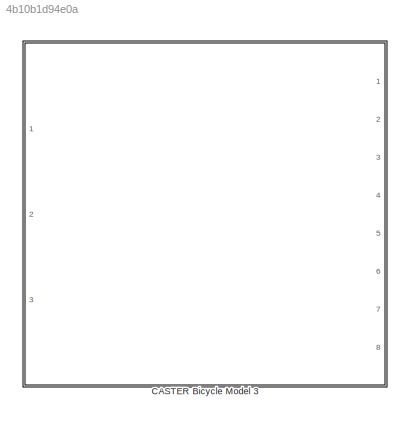
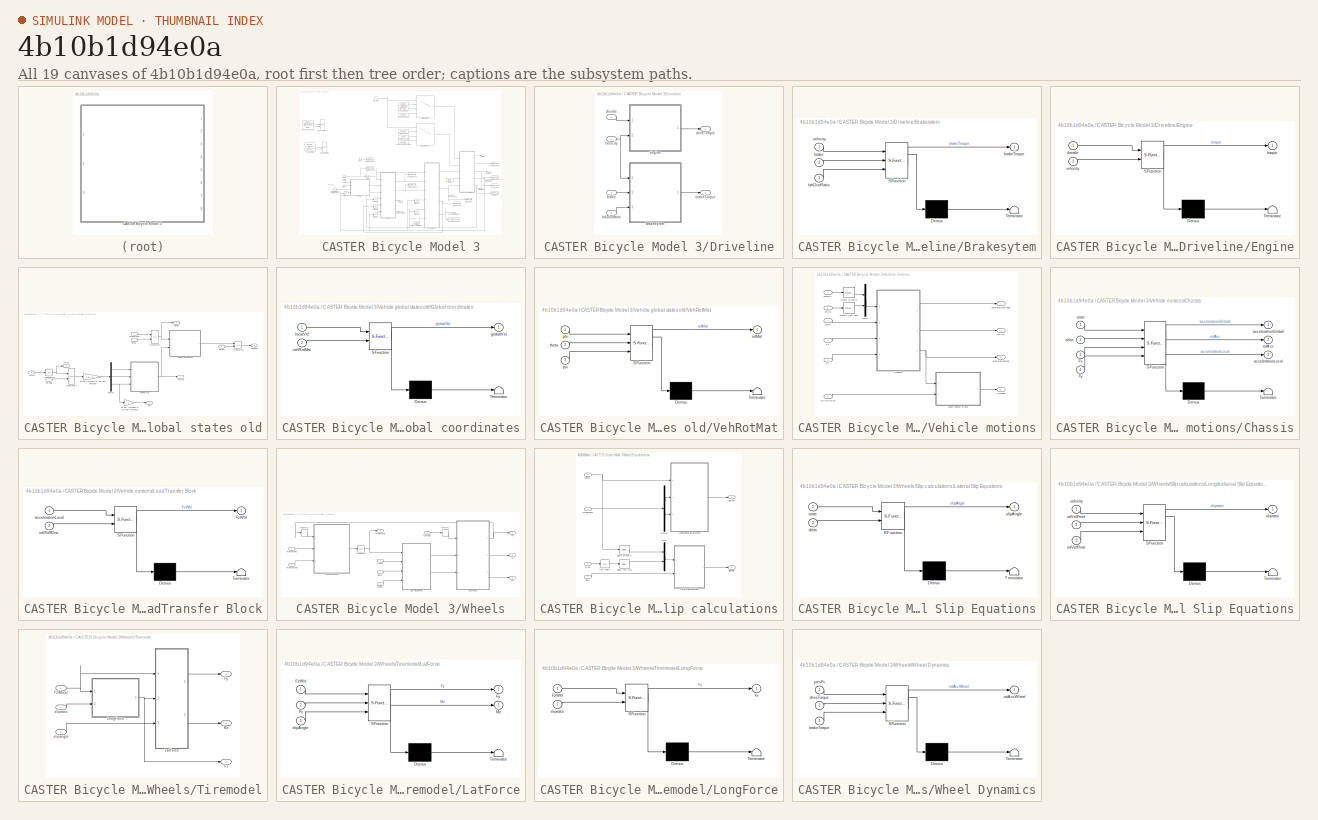
[diagram: thumbnail index - all 19 canvases of the model, root first then tree order]
MODEL slx_4b10b1d94e0a
KIND model
CONFIG AbsTol = auto
CONFIG EnableMultiTasking = on
CONFIG FixedStep = auto
CONFIG MaxStep = auto
CONFIG MinStep = auto
CONFIG RelTol = 1e-3
CONFIG SampleTimeConstraint = Unconstrained
CONFIG SolverName = VariableStepAuto
CONFIG StartTime = 0.0
CONFIG StopTime = 10.0
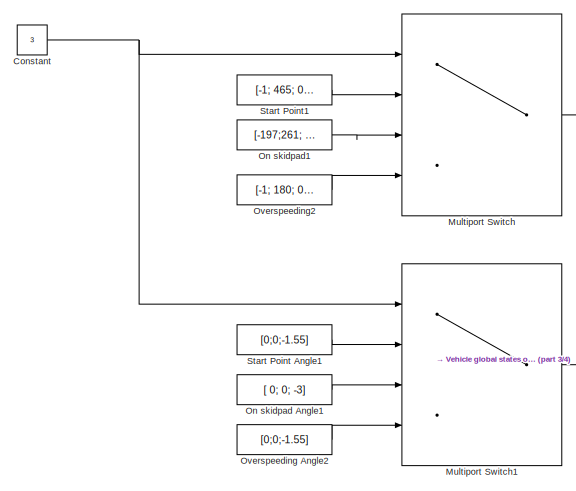
[diagram: CASTER Bicycle Model 3 - part 1/4, top center region]
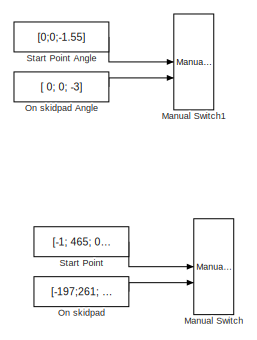
[diagram: CASTER Bicycle Model 3 - part 2/4, top left region]
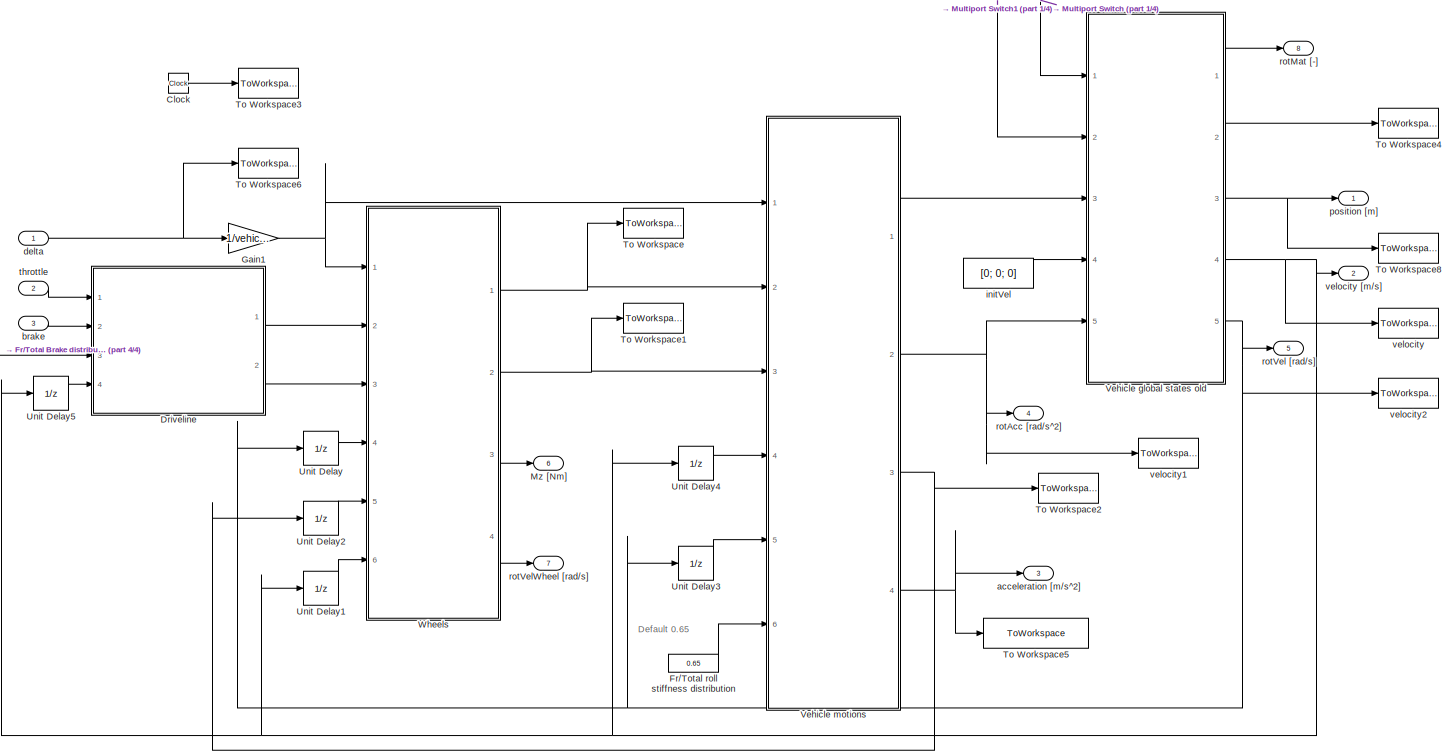
[diagram: CASTER Bicycle Model 3 - part 3/4, full width, bottom band]
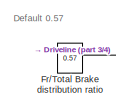
[diagram: CASTER Bicycle Model 3 - part 4/4, bottom left region]
BLOCK [SubSystem] CASTER Bicycle Model 3
  Ports = [3, 8]
  RequestExecContextInheritance = off
BLOCK [Clock] CASTER Bicycle Model 3/Clock
BLOCK [Constant] CASTER Bicycle Model 3/Constant
  Value = 3
BLOCK [SubSystem] CASTER Bicycle Model 3/Driveline
  Ports = [4, 2]
  RequestExecContextInheritance = off
BLOCK [SubSystem] CASTER Bicycle Model 3/Driveline/Brakesytem
  ErrorFcn = Stateflow.Translate.translate
  PermitHierarchicalResolution = ExplicitOnly
  Ports = [3, 1]
  RequestExecContextInheritance = off
  SFBlockType = MATLAB Function
  TreatAsAtomicUnit = on
BLOCK [Demux] CASTER Bicycle Model 3/Driveline/Brakesytem/ Demux 
  Outputs = 1
  Ports = [1, 1]
BLOCK [S-Function] CASTER Bicycle Model 3/Driveline/Brakesytem/ SFunction 
  EnableBusSupport = off
  FunctionName = sf_sfun
  PortCounts = [3 2]
  Ports = [3, 2]
  SFcnIsStateOwnerBlock = off
  SFunctionDeploymentMode = off
  Tag = Stateflow S-Function 1
BLOCK [Terminator] CASTER Bicycle Model 3/Driveline/Brakesytem/ Terminator 
BLOCK [Inport] CASTER Bicycle Model 3/Driveline/Brakesytem/brake
  Port = 2
BLOCK [Outport] CASTER Bicycle Model 3/Driveline/Brakesytem/brakeTorque
BLOCK [Inport] CASTER Bicycle Model 3/Driveline/Brakesytem/brkDistRatio
  Port = 3
BLOCK [Inport] CASTER Bicycle Model 3/Driveline/Brakesytem/velocity
BLOCK [SubSystem] CASTER Bicycle Model 3/Driveline/Engine
  ErrorFcn = Stateflow.Translate.translate
  PermitHierarchicalResolution = ExplicitOnly
  Ports = [2, 1]
  RequestExecContextInheritance = off
  SFBlockType = MATLAB Function
  TreatAsAtomicUnit = on
BLOCK [Demux] CASTER Bicycle Model 3/Driveline/Engine/ Demux 
  Outputs = 1
  Ports = [1, 1]
BLOCK [S-Function] CASTER Bicycle Model 3/Driveline/Engine/ SFunction 
  EnableBusSupport = off
  FunctionName = sf_sfun
  Parameters = vehicleData
  PortCounts = [2 2]
  Ports = [2, 2]
  SFcnIsStateOwnerBlock = off
  SFunctionDeploymentMode = off
  Tag = Stateflow S-Function 2
BLOCK [Terminator] CASTER Bicycle Model 3/Driveline/Engine/ Terminator 
BLOCK [Inport] CASTER Bicycle Model 3/Driveline/Engine/throttle
BLOCK [Outport] CASTER Bicycle Model 3/Driveline/Engine/torque
BLOCK [Inport] CASTER Bicycle Model 3/Driveline/Engine/velocity
  Port = 2
BLOCK [Inport] CASTER Bicycle Model 3/Driveline/brake
  Port = 2
BLOCK [Outport] CASTER Bicycle Model 3/Driveline/brakeTorque
  Port = 2
BLOCK [Inport] CASTER Bicycle Model 3/Driveline/brkDistRatio
  Port = 3
BLOCK [Outport] CASTER Bicycle Model 3/Driveline/driveTorque
BLOCK [Inport] CASTER Bicycle Model 3/Driveline/throttle
BLOCK [Inport] CASTER Bicycle Model 3/Driveline/velocity
  Port = 4
BLOCK [Constant] CASTER Bicycle Model 3/Fr//Total Brake distribution ratio
  Value = 0.57
  VectorParams1D = off
BLOCK [Constant] CASTER Bicycle Model 3/Fr//Total roll stiffness distribution
  Value = 0.65
BLOCK [Gain] CASTER Bicycle Model 3/Gain1
  Gain = 1/vehicleData.steeringRatio
BLOCK [ManualSwitch] CASTER Bicycle Model 3/Manual Switch
  Commented = on
BLOCK [ManualSwitch] CASTER Bicycle Model 3/Manual Switch1
  Commented = on
BLOCK [MultiPortSwitch] CASTER Bicycle Model 3/Multiport Switch
  InputSameDT = off
  Ports = [4, 1]
  SaturateOnIntegerOverflow = off
BLOCK [MultiPortSwitch] CASTER Bicycle Model 3/Multiport Switch1
  InputSameDT = off
  Ports = [4, 1]
  SaturateOnIntegerOverflow = off
BLOCK [Outport] CASTER Bicycle Model 3/Mz [Nm]
  Port = 6
BLOCK [Constant] CASTER Bicycle Model 3/On skidpad
  Commented = on
  Value = [-197;261; 0.7]
BLOCK [Constant] CASTER Bicycle Model 3/On skidpad Angle
  Commented = on
  Value = [ 0; 0; -3]
BLOCK [Constant] CASTER Bicycle Model 3/On skidpad Angle1
  Value = [ 0; 0; -3]
BLOCK [Constant] CASTER Bicycle Model 3/On skidpad1
  Value = [-197;261; 0.7]
BLOCK [Constant] CASTER Bicycle Model 3/Overspeeding Angle2
  Value = [0;0;-1.55]
BLOCK [Constant] CASTER Bicycle Model 3/Overspeeding2
  Value = [-1; 180; 0.7]
BLOCK [Constant] CASTER Bicycle Model 3/Start Point
  Commented = on
  Value = [-1; 465; 0.7]
BLOCK [Constant] CASTER Bicycle Model 3/Start Point Angle
  Commented = on
  Value = [0;0;-1.55]
BLOCK [Constant] CASTER Bicycle Model 3/Start Point Angle1
  Value = [0;0;-1.55]
BLOCK [Constant] CASTER Bicycle Model 3/Start Point1
  Value = [-1; 465; 0.7]
BLOCK [ToWorkspace] CASTER Bicycle Model 3/To Workspace
  FixptAsFi = on
  MaxDataPoints = inf
  Ports = [1]
  SampleTime = -1
  VariableName = Fx
BLOCK [ToWorkspace] CASTER Bicycle Model 3/To Workspace1
  FixptAsFi = on
  MaxDataPoints = inf
  Ports = [1]
  SampleTime = -1
  VariableName = Fy
BLOCK [ToWorkspace] CASTER Bicycle Model 3/To Workspace2
  FixptAsFi = on
  MaxDataPoints = inf
  Ports = [1]
  SampleTime = -1
  VariableName = FzWheel
BLOCK [ToWorkspace] CASTER Bicycle Model 3/To Workspace3
  FixptAsFi = on
  MaxDataPoints = inf
  Ports = [1]
  SampleTime = -1
  VariableName = t
BLOCK [ToWorkspace] CASTER Bicycle Model 3/To Workspace4
  FixptAsFi = on
  MaxDataPoints = inf
  Ports = [1]
  SampleTime = -1
  VariableName = psi
BLOCK [ToWorkspace] CASTER Bicycle Model 3/To Workspace5
  FixptAsFi = on
  MaxDataPoints = inf
  Ports = [1]
  SampleTime = -1
  VariableName = accelerationLocal
BLOCK [ToWorkspace] CASTER Bicycle Model 3/To Workspace6
  FixptAsFi = on
  MaxDataPoints = inf
  Ports = [1]
  SampleTime = -1
  VariableName = delta
BLOCK [ToWorkspace] CASTER Bicycle Model 3/To Workspace8
  FixptAsFi = on
  MaxDataPoints = inf
  Ports = [1]
  SampleTime = -1
  VariableName = position
BLOCK [UnitDelay] CASTER Bicycle Model 3/Unit Delay
  HasFrameUpgradeWarning = on
  SampleTime = -1
BLOCK [UnitDelay] CASTER Bicycle Model 3/Unit Delay1
  HasFrameUpgradeWarning = on
  SampleTime = -1
BLOCK [UnitDelay] CASTER Bicycle Model 3/Unit Delay2
  HasFrameUpgradeWarning = on
  SampleTime = -1
BLOCK [UnitDelay] CASTER Bicycle Model 3/Unit Delay3
  HasFrameUpgradeWarning = on
  SampleTime = -1
BLOCK [UnitDelay] CASTER Bicycle Model 3/Unit Delay4
  HasFrameUpgradeWarning = on
  SampleTime = -1
BLOCK [UnitDelay] CASTER Bicycle Model 3/Unit Delay5
  HasFrameUpgradeWarning = on
  SampleTime = -1
BLOCK [SubSystem] CASTER Bicycle Model 3/Vehicle global states old
  Ports = [5, 5]
  RequestExecContextInheritance = off
BLOCK [Demux] CASTER Bicycle Model 3/Vehicle global states old/Demux
  Outputs = 3
  Ports = [1, 3]
BLOCK [SubSystem] CASTER Bicycle Model 3/Vehicle global states old/Global coordinates
  ErrorFcn = Stateflow.Translate.translate
  PermitHierarchicalResolution = ExplicitOnly
  Ports = [2, 1]
  RequestExecContextInheritance = off
  SFBlockType = MATLAB Function
  TreatAsAtomicUnit = on
BLOCK [Demux] CASTER Bicycle Model 3/Vehicle global states old/Global coordinates/ Demux 
  Outputs = 1
  Ports = [1, 1]
BLOCK [S-Function] CASTER Bicycle Model 3/Vehicle global states old/Global coordinates/ SFunction 
  EnableBusSupport = off
  FunctionName = sf_sfun
  PortCounts = [2 2]
  Ports = [2, 2]
  SFcnIsStateOwnerBlock = off
  SFunctionDeploymentMode = off
  Tag = Stateflow S-Function 3
BLOCK [Terminator] CASTER Bicycle Model 3/Vehicle global states old/Global coordinates/ Terminator 
BLOCK [Outport] CASTER Bicycle Model 3/Vehicle global states old/Global coordinates/globalVel
BLOCK [Inport] CASTER Bicycle Model 3/Vehicle global states old/Global coordinates/localVel
BLOCK [Inport] CASTER Bicycle Model 3/Vehicle global states old/Global coordinates/vehRotMat
  Port = 2
BLOCK [Integrator] CASTER Bicycle Model 3/Vehicle global states old/Integrator1
  InitialCondition = [0 0 0]
  InitialConditionSource = external
  LimitOutput = on
  Ports = [2, 1]
  UpperSaturationLimit = 90/3.6
BLOCK [Integrator] CASTER Bicycle Model 3/Vehicle global states old/Integrator2
  InitialCondition = [0; 0; 2]
  InitialConditionSource = external
  Ports = [2, 1]
BLOCK [Integrator] CASTER Bicycle Model 3/Vehicle global states old/Integrator3
  InitialCondition = [0 0 0]
  LowerSaturationLimit = -200
  Ports = [1, 1]
  UpperSaturationLimit = 200
BLOCK [Integrator] CASTER Bicycle Model 3/Vehicle global states old/Integrator4
  InitialCondition = [0 0 0]
  InitialConditionSource = external
  LowerSaturationLimit = -200
  Ports = [2, 1]
  UpperSaturationLimit = 200
BLOCK [Gain] CASTER Bicycle Model 3/Vehicle global states old/To get rotations in the right direction
  Gain = [-1; -1; -1]
BLOCK [Gain] CASTER Bicycle Model 3/Vehicle global states old/To get rotations in the right direction1
  Gain = -1
BLOCK [SubSystem] CASTER Bicycle Model 3/Vehicle global states old/VehRotMat
  ErrorFcn = Stateflow.Translate.translate
  PermitHierarchicalResolution = ExplicitOnly
  Ports = [3, 1]
  RequestExecContextInheritance = off
  SFBlockType = MATLAB Function
  TreatAsAtomicUnit = on
BLOCK [Demux] CASTER Bicycle Model 3/Vehicle global states old/VehRotMat/ Demux 
  Outputs = 1
  Ports = [1, 1]
BLOCK [S-Function] CASTER Bicycle Model 3/Vehicle global states old/VehRotMat/ SFunction 
  EnableBusSupport = off
  FunctionName = sf_sfun
  PortCounts = [3 2]
  Ports = [3, 2]
  SFcnIsStateOwnerBlock = off
  SFunctionDeploymentMode = off
  Tag = Stateflow S-Function 4
BLOCK [Terminator] CASTER Bicycle Model 3/Vehicle global states old/VehRotMat/ Terminator 
BLOCK [Inport] CASTER Bicycle Model 3/Vehicle global states old/VehRotMat/phi
BLOCK [Inport] CASTER Bicycle Model 3/Vehicle global states old/VehRotMat/psi
  Port = 3
BLOCK [Outport] CASTER Bicycle Model 3/Vehicle global states old/VehRotMat/rotMat
BLOCK [Inport] CASTER Bicycle Model 3/Vehicle global states old/VehRotMat/theta
  Port = 2
BLOCK [Inport] CASTER Bicycle Model 3/Vehicle global states old/acceleration
  Port = 3
BLOCK [Inport] CASTER Bicycle Model 3/Vehicle global states old/initAngle
  Port = 2
BLOCK [Inport] CASTER Bicycle Model 3/Vehicle global states old/initPos
BLOCK [Inport] CASTER Bicycle Model 3/Vehicle global states old/initVel
  Port = 4
BLOCK [Outport] CASTER Bicycle Model 3/Vehicle global states old/position
  Port = 3
BLOCK [Outport] CASTER Bicycle Model 3/Vehicle global states old/psi
  Port = 2
BLOCK [Inport] CASTER Bicycle Model 3/Vehicle global states old/rotAcc
  Port = 5
BLOCK [Outport] CASTER Bicycle Model 3/Vehicle global states old/rotMat
BLOCK [Outport] CASTER Bicycle Model 3/Vehicle global states old/rotVel
  Port = 5
BLOCK [Outport] CASTER Bicycle Model 3/Vehicle global states old/velocity
  Port = 4
BLOCK [SubSystem] CASTER Bicycle Model 3/Vehicle motions
  Ports = [6, 4]
  RequestExecContextInheritance = off
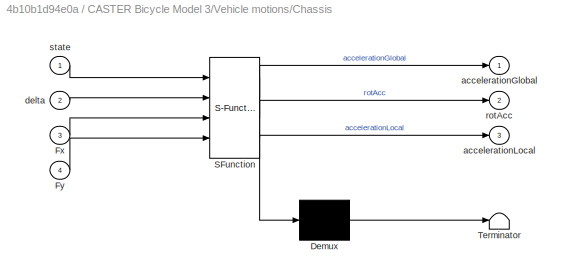
BLOCK [SubSystem] CASTER Bicycle Model 3/Vehicle motions/Chassis
  ErrorFcn = Stateflow.Translate.translate
  PermitHierarchicalResolution = ExplicitOnly
  Ports = [4, 3]
  RequestExecContextInheritance = off
  SFBlockType = MATLAB Function
  TreatAsAtomicUnit = on
BLOCK [Demux] CASTER Bicycle Model 3/Vehicle motions/Chassis/ Demux 
  Outputs = 1
  Ports = [1, 1]
BLOCK [S-Function] CASTER Bicycle Model 3/Vehicle motions/Chassis/ SFunction 
  EnableBusSupport = off
  FunctionName = sf_sfun
  Parameters = vehicleData
  PortCounts = [4 4]
  Ports = [4, 4]
  SFcnIsStateOwnerBlock = off
  SFunctionDeploymentMode = off
  Tag = Stateflow S-Function 7
BLOCK [Terminator] CASTER Bicycle Model 3/Vehicle motions/Chassis/ Terminator 
BLOCK [Inport] CASTER Bicycle Model 3/Vehicle motions/Chassis/Fx
  Port = 3
BLOCK [Inport] CASTER Bicycle Model 3/Vehicle motions/Chassis/Fy
  Port = 4
BLOCK [Outport] CASTER Bicycle Model 3/Vehicle motions/Chassis/accelerationGlobal
BLOCK [Outport] CASTER Bicycle Model 3/Vehicle motions/Chassis/accelerationLocal
  Port = 3
BLOCK [Inport] CASTER Bicycle Model 3/Vehicle motions/Chassis/delta
  Port = 2
BLOCK [Outport] CASTER Bicycle Model 3/Vehicle motions/Chassis/rotAcc
  Port = 2
BLOCK [Inport] CASTER Bicycle Model 3/Vehicle motions/Chassis/state
BLOCK [Inport] CASTER Bicycle Model 3/Vehicle motions/Fx
  Port = 2
BLOCK [Inport] CASTER Bicycle Model 3/Vehicle motions/Fy
  Port = 3
BLOCK [Outport] CASTER Bicycle Model 3/Vehicle motions/FzWheel
  Port = 3
BLOCK [SubSystem] CASTER Bicycle Model 3/Vehicle motions/LoadTransfer Block
  ErrorFcn = Stateflow.Translate.translate
  PermitHierarchicalResolution = ExplicitOnly
  Ports = [2, 1]
  RequestExecContextInheritance = off
  SFBlockType = MATLAB Function
  TreatAsAtomicUnit = on
BLOCK [Demux] CASTER Bicycle Model 3/Vehicle motions/LoadTransfer Block/ Demux 
  Outputs = 1
  Ports = [1, 1]
BLOCK [S-Function] CASTER Bicycle Model 3/Vehicle motions/LoadTransfer Block/ SFunction 
  EnableBusSupport = off
  FunctionName = sf_sfun
  Parameters = vehicleData
  PortCounts = [2 2]
  Ports = [2, 2]
  SFcnIsStateOwnerBlock = off
  SFunctionDeploymentMode = off
  Tag = Stateflow S-Function 23
BLOCK [Terminator] CASTER Bicycle Model 3/Vehicle motions/LoadTransfer Block/ Terminator 
BLOCK [Outport] CASTER Bicycle Model 3/Vehicle motions/LoadTransfer Block/FzWhl
BLOCK [Inport] CASTER Bicycle Model 3/Vehicle motions/LoadTransfer Block/accelerationLocal
BLOCK [Inport] CASTER Bicycle Model 3/Vehicle motions/LoadTransfer Block/rollStiffDist
  Port = 2
BLOCK [Mux] CASTER Bicycle Model 3/Vehicle motions/Mux1
  DisplayOption = bar
  Inputs = 2
  Ports = [2, 1]
BLOCK [Selector] CASTER Bicycle Model 3/Vehicle motions/Select Yaw rate
  IndexOptions = Index vector (dialog)
  Indices = [3]
  InputPortWidth = 3
  OutputSizes = 1
  Ports = [1, 1]
BLOCK [Selector] CASTER Bicycle Model 3/Vehicle motions/Select vx and vy
  IndexOptions = Index vector (dialog)
  Indices = [1 2]
  InputPortWidth = 3
  OutputSizes = 1
  Ports = [1, 1]
BLOCK [Outport] CASTER Bicycle Model 3/Vehicle motions/accelerationGlobal
BLOCK [Outport] CASTER Bicycle Model 3/Vehicle motions/accelerationLocal
  Port = 4
BLOCK [Inport] CASTER Bicycle Model 3/Vehicle motions/delta
BLOCK [Inport] CASTER Bicycle Model 3/Vehicle motions/rollStiffDist
  Port = 6
BLOCK [Outport] CASTER Bicycle Model 3/Vehicle motions/rotAcc
  Port = 2
BLOCK [Inport] CASTER Bicycle Model 3/Vehicle motions/rotVel
  Port = 5
BLOCK [Inport] CASTER Bicycle Model 3/Vehicle motions/velocity
  Port = 4
BLOCK [SubSystem] CASTER Bicycle Model 3/Wheels
  Ports = [6, 4]
  RequestExecContextInheritance = off
BLOCK [Outport] CASTER Bicycle Model 3/Wheels/Fx
BLOCK [Outport] CASTER Bicycle Model 3/Wheels/Fy
  Port = 2
BLOCK [Inport] CASTER Bicycle Model 3/Wheels/FzWheel
  Port = 5
BLOCK [Integrator] CASTER Bicycle Model 3/Wheels/Integrator
  LowerSaturationLimit = -20
  Ports = [1, 1]
  UpperSaturationLimit = 20
BLOCK [Memory] CASTER Bicycle Model 3/Wheels/Memory
  InitialCondition = vehicleData.m*vehicleData.g/4*ones(4,1)
BLOCK [Memory] CASTER Bicycle Model 3/Wheels/Memory1
  InitialCondition = [0; 0]
BLOCK [Outport] CASTER Bicycle Model 3/Wheels/Mz
  Port = 3
BLOCK [SubSystem] CASTER Bicycle Model 3/Wheels/Slip calculations
  Ports = [4, 2]
  RequestExecContextInheritance = off
BLOCK [Demux] CASTER Bicycle Model 3/Wheels/Slip calculations/Demux
  Outputs = 2
  Ports = [1, 2]
BLOCK [SubSystem] CASTER Bicycle Model 3/Wheels/Slip calculations/Lateral Slip Equations
  ErrorFcn = Stateflow.Translate.translate
  PermitHierarchicalResolution = ExplicitOnly
  Ports = [2, 1]
  RequestExecContextInheritance = off
  SFBlockType = MATLAB Function
  TreatAsAtomicUnit = on
BLOCK [Demux] CASTER Bicycle Model 3/Wheels/Slip calculations/Lateral Slip Equations/ Demux 
  Outputs = 1
  Ports = [1, 1]
BLOCK [S-Function] CASTER Bicycle Model 3/Wheels/Slip calculations/Lateral Slip Equations/ SFunction 
  EnableBusSupport = off
  FunctionName = sf_sfun
  Parameters = vehicleData
  PortCounts = [2 2]
  Ports = [2, 2]
  SFcnIsStateOwnerBlock = off
  SFunctionDeploymentMode = off
  Tag = Stateflow S-Function 22
BLOCK [Terminator] CASTER Bicycle Model 3/Wheels/Slip calculations/Lateral Slip Equations/ Terminator 
BLOCK [Inport] CASTER Bicycle Model 3/Wheels/Slip calculations/Lateral Slip Equations/delta
  Port = 2
BLOCK [Outport] CASTER Bicycle Model 3/Wheels/Slip calculations/Lateral Slip Equations/slipAngle
BLOCK [Inport] CASTER Bicycle Model 3/Wheels/Slip calculations/Lateral Slip Equations/state
BLOCK [SubSystem] CASTER Bicycle Model 3/Wheels/Slip calculations/Longitudianal Slip Equations
  ErrorFcn = Stateflow.Translate.translate
  PermitHierarchicalResolution = ExplicitOnly
  Ports = [3, 1]
  RequestExecContextInheritance = off
  SFBlockType = MATLAB Function
  TreatAsAtomicUnit = on
BLOCK [Demux] CASTER Bicycle Model 3/Wheels/Slip calculations/Longitudianal Slip Equations/ Demux 
  Outputs = 1
  Ports = [1, 1]
BLOCK [S-Function] CASTER Bicycle Model 3/Wheels/Slip calculations/Longitudianal Slip Equations/ SFunction 
  EnableBusSupport = off
  FunctionName = sf_sfun
  Parameters = vehicleData
  PortCounts = [3 2]
  Ports = [3, 2]
  SFcnIsStateOwnerBlock = off
  SFunctionDeploymentMode = off
  Tag = Stateflow S-Function 9
BLOCK [Terminator] CASTER Bicycle Model 3/Wheels/Slip calculations/Longitudianal Slip Equations/ Terminator 
BLOCK [Inport] CASTER Bicycle Model 3/Wheels/Slip calculations/Longitudianal Slip Equations/rotVelFront
  Port = 2
BLOCK [Inport] CASTER Bicycle Model 3/Wheels/Slip calculations/Longitudianal Slip Equations/rotVelRear
  Port = 3
BLOCK [Outport] CASTER Bicycle Model 3/Wheels/Slip calculations/Longitudianal Slip Equations/slipratio
BLOCK [Inport] CASTER Bicycle Model 3/Wheels/Slip calculations/Longitudianal Slip Equations/velocity
BLOCK [Mux] CASTER Bicycle Model 3/Wheels/Slip calculations/Mux
  DisplayOption = bar
  Inputs = 2
  Ports = [2, 1]
BLOCK [Selector] CASTER Bicycle Model 3/Wheels/Slip calculations/Select Yaw rate
  IndexOptions = Index vector (dialog)
  Indices = [3]
  InputPortWidth = 3
  OutputSizes = 1
  Ports = [1, 1]
BLOCK [Selector] CASTER Bicycle Model 3/Wheels/Slip calculations/Select vx and vy
  IndexOptions = Index vector (dialog)
  Indices = [1 2]
  InputPortWidth = 3
  OutputSizes = 1
  Ports = [1, 1]
BLOCK [UnitDelay] CASTER Bicycle Model 3/Wheels/Slip calculations/Unit Delay4
  HasFrameUpgradeWarning = on
  SampleTime = -1
BLOCK [Inport] CASTER Bicycle Model 3/Wheels/Slip calculations/delta
  Port = 3
BLOCK [Inport] CASTER Bicycle Model 3/Wheels/Slip calculations/rotVel
  Port = 2
BLOCK [Inport] CASTER Bicycle Model 3/Wheels/Slip calculations/rotVelWheel
BLOCK [Outport] CASTER Bicycle Model 3/Wheels/Slip calculations/slipangle
  Port = 2
BLOCK [Outport] CASTER Bicycle Model 3/Wheels/Slip calculations/slipratio
BLOCK [Inport] CASTER Bicycle Model 3/Wheels/Slip calculations/velocity
  Port = 4
BLOCK [SubSystem] CASTER Bicycle Model 3/Wheels/Tiremodel
  Ports = [3, 3]
  RequestExecContextInheritance = off
BLOCK [Outport] CASTER Bicycle Model 3/Wheels/Tiremodel/Fx
BLOCK [Outport] CASTER Bicycle Model 3/Wheels/Tiremodel/Fy
  Port = 2
BLOCK [Inport] CASTER Bicycle Model 3/Wheels/Tiremodel/FzWheel
BLOCK [SubSystem] CASTER Bicycle Model 3/Wheels/Tiremodel/LatForce
  ErrorFcn = Stateflow.Translate.translate
  PermitHierarchicalResolution = ExplicitOnly
  Ports = [3, 2]
  RequestExecContextInheritance = off
  SFBlockType = MATLAB Function
  TreatAsAtomicUnit = on
BLOCK [Demux] CASTER Bicycle Model 3/Wheels/Tiremodel/LatForce/ Demux 
  Outputs = 1
  Ports = [1, 1]
BLOCK [S-Function] CASTER Bicycle Model 3/Wheels/Tiremodel/LatForce/ SFunction 
  EnableBusSupport = off
  FunctionName = sf_sfun
  Parameters = vehicleData
  PortCounts = [3 3]
  Ports = [3, 3]
  SFcnIsStateOwnerBlock = off
  SFunctionDeploymentMode = off
  Tag = Stateflow S-Function 8
BLOCK [Terminator] CASTER Bicycle Model 3/Wheels/Tiremodel/LatForce/ Terminator 
BLOCK [Inport] CASTER Bicycle Model 3/Wheels/Tiremodel/LatForce/Fx
  Port = 2
BLOCK [Outport] CASTER Bicycle Model 3/Wheels/Tiremodel/LatForce/Fy
BLOCK [Inport] CASTER Bicycle Model 3/Wheels/Tiremodel/LatForce/FzWhl
BLOCK [Outport] CASTER Bicycle Model 3/Wheels/Tiremodel/LatForce/Mz
  Port = 2
BLOCK [Inport] CASTER Bicycle Model 3/Wheels/Tiremodel/LatForce/slipAngle
  Port = 3
BLOCK [SubSystem] CASTER Bicycle Model 3/Wheels/Tiremodel/LongForce
  ErrorFcn = Stateflow.Translate.translate
  PermitHierarchicalResolution = ExplicitOnly
  Ports = [2, 1]
  RequestExecContextInheritance = off
  SFBlockType = MATLAB Function
  TreatAsAtomicUnit = on
BLOCK [Demux] CASTER Bicycle Model 3/Wheels/Tiremodel/LongForce/ Demux 
  Outputs = 1
  Ports = [1, 1]
BLOCK [S-Function] CASTER Bicycle Model 3/Wheels/Tiremodel/LongForce/ SFunction 
  EnableBusSupport = off
  FunctionName = sf_sfun
  PortCounts = [2 2]
  Ports = [2, 2]
  SFcnIsStateOwnerBlock = off
  SFunctionDeploymentMode = off
  Tag = Stateflow S-Function 15
BLOCK [Terminator] CASTER Bicycle Model 3/Wheels/Tiremodel/LongForce/ Terminator 
BLOCK [Outport] CASTER Bicycle Model 3/Wheels/Tiremodel/LongForce/Fx
BLOCK [Inport] CASTER Bicycle Model 3/Wheels/Tiremodel/LongForce/FzWhl
BLOCK [Inport] CASTER Bicycle Model 3/Wheels/Tiremodel/LongForce/slipratio
  Port = 2
BLOCK [Outport] CASTER Bicycle Model 3/Wheels/Tiremodel/Mz
  Port = 3
BLOCK [Inport] CASTER Bicycle Model 3/Wheels/Tiremodel/slipangle
  Port = 3
BLOCK [Inport] CASTER Bicycle Model 3/Wheels/Tiremodel/slipratio
  Port = 2
BLOCK [SubSystem] CASTER Bicycle Model 3/Wheels/Wheel Dynamics
  ErrorFcn = Stateflow.Translate.translate
  PermitHierarchicalResolution = ExplicitOnly
  Ports = [3, 1]
  RequestExecContextInheritance = off
  SFBlockType = MATLAB Function
  TreatAsAtomicUnit = on
BLOCK [Demux] CASTER Bicycle Model 3/Wheels/Wheel Dynamics/ Demux 
  Outputs = 1
  Ports = [1, 1]
BLOCK [S-Function] CASTER Bicycle Model 3/Wheels/Wheel Dynamics/ SFunction 
  EnableBusSupport = off
  FunctionName = sf_sfun
  Parameters = vehicleData
  PortCounts = [3 2]
  Ports = [3, 2]
  SFcnIsStateOwnerBlock = off
  SFunctionDeploymentMode = off
  Tag = Stateflow S-Function 34
BLOCK [Terminator] CASTER Bicycle Model 3/Wheels/Wheel Dynamics/ Terminator 
BLOCK [Inport] CASTER Bicycle Model 3/Wheels/Wheel Dynamics/brakeTorque
  Port = 3
BLOCK [Inport] CASTER Bicycle Model 3/Wheels/Wheel Dynamics/driveTorque
  Port = 2
BLOCK [Inport] CASTER Bicycle Model 3/Wheels/Wheel Dynamics/prevFx
BLOCK [Outport] CASTER Bicycle Model 3/Wheels/Wheel Dynamics/rotAccWheel
BLOCK [Inport] CASTER Bicycle Model 3/Wheels/brakeTorque
  Port = 3
BLOCK [Inport] CASTER Bicycle Model 3/Wheels/delta
BLOCK [Inport] CASTER Bicycle Model 3/Wheels/driveTorque
  Port = 2
BLOCK [Inport] CASTER Bicycle Model 3/Wheels/rotVel
  Port = 4
BLOCK [Outport] CASTER Bicycle Model 3/Wheels/rotVelWheel
  Port = 4
BLOCK [Inport] CASTER Bicycle Model 3/Wheels/velocity
  Port = 6
BLOCK [Outport] CASTER Bicycle Model 3/acceleration [m//s^2]
  Port = 3
BLOCK [Inport] CASTER Bicycle Model 3/brake
  Port = 3
BLOCK [Inport] CASTER Bicycle Model 3/delta
BLOCK [Constant] CASTER Bicycle Model 3/initVel
  Value = [0; 0; 0]
BLOCK [Outport] CASTER Bicycle Model 3/position [m]
BLOCK [Outport] CASTER Bicycle Model 3/rotAcc [rad//s^2]
  Port = 4
BLOCK [Outport] CASTER Bicycle Model 3/rotMat [-]
  Port = 8
BLOCK [Outport] CASTER Bicycle Model 3/rotVel [rad//s]
  Port = 5
BLOCK [Outport] CASTER Bicycle Model 3/rotVelWheel [rad//s]
  Port = 7
BLOCK [Inport] CASTER Bicycle Model 3/throttle
  Port = 2
BLOCK [ToWorkspace] CASTER Bicycle Model 3/velocity
  FixptAsFi = on
  MaxDataPoints = inf
  Ports = [1]
  SampleTime = -1
  VariableName = velocity
BLOCK [Outport] CASTER Bicycle Model 3/velocity [m//s]
  Port = 2
BLOCK [ToWorkspace] CASTER Bicycle Model 3/velocity1
  FixptAsFi = on
  MaxDataPoints = inf
  Ports = [1]
  SampleTime = -1
  VariableName = rotAcc
BLOCK [ToWorkspace] CASTER Bicycle Model 3/velocity2
  FixptAsFi = on
  MaxDataPoints = inf
  Ports = [1]
  SampleTime = -1
  VariableName = rotVel
ANNOTATION CASTER Bicycle Model 3: Default 0.57
ANNOTATION CASTER Bicycle Model 3: Default 0.65
LINE CASTER Bicycle Model 3/Clock:1 -> CASTER Bicycle Model 3/To Workspace3:1
NET CASTER Bicycle Model 3/Constant:1 -> CASTER Bicycle Model 3/Multiport Switch1:1, CASTER Bicycle Model 3/Multiport Switch:1
LINE CASTER Bicycle Model 3/Driveline/Brakesytem:1 -> CASTER Bicycle Model 3/Driveline/brakeTorque:1
LINE CASTER Bicycle Model 3/Driveline/Engine:1 -> CASTER Bicycle Model 3/Driveline/driveTorque:1
LINE CASTER Bicycle Model 3/Driveline/brake:1 -> CASTER Bicycle Model 3/Driveline/Brakesytem:2
LINE CASTER Bicycle Model 3/Driveline/brkDistRatio:1 -> CASTER Bicycle Model 3/Driveline/Brakesytem:3
LINE CASTER Bicycle Model 3/Driveline/throttle:1 -> CASTER Bicycle Model 3/Driveline/Engine:1
NET CASTER Bicycle Model 3/Driveline/velocity:1 -> CASTER Bicycle Model 3/Driveline/Brakesytem:1, CASTER Bicycle Model 3/Driveline/Engine:2
LINE CASTER Bicycle Model 3/Driveline:1 -> CASTER Bicycle Model 3/Wheels:2
LINE CASTER Bicycle Model 3/Driveline:2 -> CASTER Bicycle Model 3/Wheels:3
LINE CASTER Bicycle Model 3/Fr//Total Brake distribution ratio:1 -> CASTER Bicycle Model 3/Driveline:3
LINE CASTER Bicycle Model 3/Fr//Total roll stiffness distribution:1 -> CASTER Bicycle Model 3/Vehicle motions:6
NET CASTER Bicycle Model 3/Gain1:1 -> CASTER Bicycle Model 3/Vehicle motions:1, CASTER Bicycle Model 3/Wheels:1
LINE CASTER Bicycle Model 3/Multiport Switch1:1 -> CASTER Bicycle Model 3/Vehicle global states old:2
LINE CASTER Bicycle Model 3/Multiport Switch:1 -> CASTER Bicycle Model 3/Vehicle global states old:1
LINE CASTER Bicycle Model 3/On skidpad Angle1:1 -> CASTER Bicycle Model 3/Multiport Switch1:3
LINE CASTER Bicycle Model 3/On skidpad Angle:1 -> CASTER Bicycle Model 3/Manual Switch1:2
LINE CASTER Bicycle Model 3/On skidpad1:1 -> CASTER Bicycle Model 3/Multiport Switch:3
LINE CASTER Bicycle Model 3/On skidpad:1 -> CASTER Bicycle Model 3/Manual Switch:2
LINE CASTER Bicycle Model 3/Overspeeding Angle2:1 -> CASTER Bicycle Model 3/Multiport Switch1:4
LINE CASTER Bicycle Model 3/Overspeeding2:1 -> CASTER Bicycle Model 3/Multiport Switch:4
LINE CASTER Bicycle Model 3/Start Point Angle1:1 -> CASTER Bicycle Model 3/Multiport Switch1:2
LINE CASTER Bicycle Model 3/Start Point Angle:1 -> CASTER Bicycle Model 3/Manual Switch1:1
LINE CASTER Bicycle Model 3/Start Point1:1 -> CASTER Bicycle Model 3/Multiport Switch:2
LINE CASTER Bicycle Model 3/Start Point:1 -> CASTER Bicycle Model 3/Manual Switch:1
LINE CASTER Bicycle Model 3/Unit Delay1:1 -> CASTER Bicycle Model 3/Wheels:6
LINE CASTER Bicycle Model 3/Unit Delay2:1 -> CASTER Bicycle Model 3/Wheels:5
LINE CASTER Bicycle Model 3/Unit Delay3:1 -> CASTER Bicycle Model 3/Vehicle motions:5
LINE CASTER Bicycle Model 3/Unit Delay4:1 -> CASTER Bicycle Model 3/Vehicle motions:4
LINE CASTER Bicycle Model 3/Unit Delay5:1 -> CASTER Bicycle Model 3/Driveline:4
LINE CASTER Bicycle Model 3/Unit Delay:1 -> CASTER Bicycle Model 3/Wheels:4
LINE CASTER Bicycle Model 3/Vehicle global states old/Demux:1 -> CASTER Bicycle Model 3/Vehicle global states old/VehRotMat:1
LINE CASTER Bicycle Model 3/Vehicle global states old/Demux:2 -> CASTER Bicycle Model 3/Vehicle global states old/VehRotMat:2
NET CASTER Bicycle Model 3/Vehicle global states old/Demux:3 -> CASTER Bicycle Model 3/Vehicle global states old/To get rotations in the right direction1:1, CASTER Bicycle Model 3/Vehicle global states old/VehRotMat:3
LINE CASTER Bicycle Model 3/Vehicle global states old/Global coordinates:1 -> CASTER Bicycle Model 3/Vehicle global states old/Integrator2:1
NET CASTER Bicycle Model 3/Vehicle global states old/Integrator1:1 -> CASTER Bicycle Model 3/Vehicle global states old/Global coordinates:1, CASTER Bicycle Model 3/Vehicle global states old/velocity:1
LINE CASTER Bicycle Model 3/Vehicle global states old/Integrator2:1 -> CASTER Bicycle Model 3/Vehicle global states old/position:1
NET CASTER Bicycle Model 3/Vehicle global states old/Integrator3:1 -> CASTER Bicycle Model 3/Vehicle global states old/Integrator4:1, CASTER Bicycle Model 3/Vehicle global states old/rotVel:1
LINE CASTER Bicycle Model 3/Vehicle global states old/Integrator4:1 -> CASTER Bicycle Model 3/Vehicle global states old/To get rotations in the right direction:1
LINE CASTER Bicycle Model 3/Vehicle global states old/To get rotations in the right direction1:1 -> CASTER Bicycle Model 3/Vehicle global states old/psi:1
LINE CASTER Bicycle Model 3/Vehicle global states old/To get rotations in the right direction:1 -> CASTER Bicycle Model 3/Vehicle global states old/Demux:1
NET CASTER Bicycle Model 3/Vehicle global states old/VehRotMat:1 -> CASTER Bicycle Model 3/Vehicle global states old/Global coordinates:2, CASTER Bicycle Model 3/Vehicle global states old/rotMat:1
LINE CASTER Bicycle Model 3/Vehicle global states old/acceleration:1 -> CASTER Bicycle Model 3/Vehicle global states old/Integrator1:1
LINE CASTER Bicycle Model 3/Vehicle global states old/initAngle:1 -> CASTER Bicycle Model 3/Vehicle global states old/Integrator4:2
LINE CASTER Bicycle Model 3/Vehicle global states old/initPos:1 -> CASTER Bicycle Model 3/Vehicle global states old/Integrator2:2
LINE CASTER Bicycle Model 3/Vehicle global states old/initVel:1 -> CASTER Bicycle Model 3/Vehicle global states old/Integrator1:2
LINE CASTER Bicycle Model 3/Vehicle global states old/rotAcc:1 -> CASTER Bicycle Model 3/Vehicle global states old/Integrator3:1
LINE CASTER Bicycle Model 3/Vehicle global states old:1 -> CASTER Bicycle Model 3/rotMat [-]:1
LINE CASTER Bicycle Model 3/Vehicle global states old:2 -> CASTER Bicycle Model 3/To Workspace4:1
NET CASTER Bicycle Model 3/Vehicle global states old:3 -> CASTER Bicycle Model 3/To Workspace8:1, CASTER Bicycle Model 3/position [m]:1
NET CASTER Bicycle Model 3/Vehicle global states old:4 -> CASTER Bicycle Model 3/Unit Delay1:1, CASTER Bicycle Model 3/Unit Delay4:1, CASTER Bicycle Model 3/Unit Delay5:1, CASTER Bicycle Model 3/velocity [m//s]:1, CASTER Bicycle Model 3/velocity:1
NET CASTER Bicycle Model 3/Vehicle global states old:5 -> CASTER Bicycle Model 3/Unit Delay3:1, CASTER Bicycle Model 3/Unit Delay:1, CASTER Bicycle Model 3/rotVel [rad//s]:1, CASTER Bicycle Model 3/velocity2:1
LINE CASTER Bicycle Model 3/Vehicle motions/Chassis:1 -> CASTER Bicycle Model 3/Vehicle motions/accelerationGlobal:1
LINE CASTER Bicycle Model 3/Vehicle motions/Chassis:2 -> CASTER Bicycle Model 3/Vehicle motions/rotAcc:1
NET CASTER Bicycle Model 3/Vehicle motions/Chassis:3 -> CASTER Bicycle Model 3/Vehicle motions/LoadTransfer Block:1, CASTER Bicycle Model 3/Vehicle motions/accelerationLocal:1
LINE CASTER Bicycle Model 3/Vehicle motions/Fx:1 -> CASTER Bicycle Model 3/Vehicle motions/Chassis:3
LINE CASTER Bicycle Model 3/Vehicle motions/Fy:1 -> CASTER Bicycle Model 3/Vehicle motions/Chassis:4
LINE CASTER Bicycle Model 3/Vehicle motions/LoadTransfer Block:1 -> CASTER Bicycle Model 3/Vehicle motions/FzWheel:1
LINE CASTER Bicycle Model 3/Vehicle motions/Mux1:1 -> CASTER Bicycle Model 3/Vehicle motions/Chassis:1
LINE CASTER Bicycle Model 3/Vehicle motions/Select Yaw rate:1 -> CASTER Bicycle Model 3/Vehicle motions/Mux1:2
LINE CASTER Bicycle Model 3/Vehicle motions/Select vx and vy:1 -> CASTER Bicycle Model 3/Vehicle motions/Mux1:1
LINE CASTER Bicycle Model 3/Vehicle motions/delta:1 -> CASTER Bicycle Model 3/Vehicle motions/Chassis:2
LINE CASTER Bicycle Model 3/Vehicle motions/rollStiffDist:1 -> CASTER Bicycle Model 3/Vehicle motions/LoadTransfer Block:2
LINE CASTER Bicycle Model 3/Vehicle motions/rotVel:1 -> CASTER Bicycle Model 3/Vehicle motions/Select Yaw rate:1
LINE CASTER Bicycle Model 3/Vehicle motions/velocity:1 -> CASTER Bicycle Model 3/Vehicle motions/Select vx and vy:1
LINE CASTER Bicycle Model 3/Vehicle motions:1 -> CASTER Bicycle Model 3/Vehicle global states old:3
NET CASTER Bicycle Model 3/Vehicle motions:2 -> CASTER Bicycle Model 3/Vehicle global states old:5, CASTER Bicycle Model 3/rotAcc [rad//s^2]:1, CASTER Bicycle Model 3/velocity1:1
NET CASTER Bicycle Model 3/Vehicle motions:3 -> CASTER Bicycle Model 3/To Workspace2:1, CASTER Bicycle Model 3/Unit Delay2:1
NET CASTER Bicycle Model 3/Vehicle motions:4 -> CASTER Bicycle Model 3/To Workspace5:1, CASTER Bicycle Model 3/acceleration [m//s^2]:1
LINE CASTER Bicycle Model 3/Wheels/FzWheel:1 -> CASTER Bicycle Model 3/Wheels/Memory:1
NET CASTER Bicycle Model 3/Wheels/Integrator:1 -> CASTER Bicycle Model 3/Wheels/Slip calculations:1, CASTER Bicycle Model 3/Wheels/rotVelWheel:1
LINE CASTER Bicycle Model 3/Wheels/Memory1:1 -> CASTER Bicycle Model 3/Wheels/Wheel Dynamics:1
LINE CASTER Bicycle Model 3/Wheels/Memory:1 -> CASTER Bicycle Model 3/Wheels/Tiremodel:1
LINE CASTER Bicycle Model 3/Wheels/Slip calculations/Demux:1 -> CASTER Bicycle Model 3/Wheels/Slip calculations/Longitudianal Slip Equations:2
LINE CASTER Bicycle Model 3/Wheels/Slip calculations/Demux:2 -> CASTER Bicycle Model 3/Wheels/Slip calculations/Longitudianal Slip Equations:3
LINE CASTER Bicycle Model 3/Wheels/Slip calculations/Lateral Slip Equations:1 -> CASTER Bicycle Model 3/Wheels/Slip calculations/slipangle:1
LINE CASTER Bicycle Model 3/Wheels/Slip calculations/Longitudianal Slip Equations:1 -> CASTER Bicycle Model 3/Wheels/Slip calculations/slipratio:1
LINE CASTER Bicycle Model 3/Wheels/Slip calculations/Mux:1 -> CASTER Bicycle Model 3/Wheels/Slip calculations/Lateral Slip Equations:1
LINE CASTER Bicycle Model 3/Wheels/Slip calculations/Select Yaw rate:1 -> CASTER Bicycle Model 3/Wheels/Slip calculations/Mux:2
LINE CASTER Bicycle Model 3/Wheels/Slip calculations/Select vx and vy:1 -> CASTER Bicycle Model 3/Wheels/Slip calculations/Mux:1
LINE CASTER Bicycle Model 3/Wheels/Slip calculations/Unit Delay4:1 -> CASTER Bicycle Model 3/Wheels/Slip calculations/Select Yaw rate:1
LINE CASTER Bicycle Model 3/Wheels/Slip calculations/delta:1 -> CASTER Bicycle Model 3/Wheels/Slip calculations/Lateral Slip Equations:2
LINE CASTER Bicycle Model 3/Wheels/Slip calculations/rotVel:1 -> CASTER Bicycle Model 3/Wheels/Slip calculations/Unit Delay4:1
LINE CASTER Bicycle Model 3/Wheels/Slip calculations/rotVelWheel:1 -> CASTER Bicycle Model 3/Wheels/Slip calculations/Demux:1
NET CASTER Bicycle Model 3/Wheels/Slip calculations/velocity:1 -> CASTER Bicycle Model 3/Wheels/Slip calculations/Longitudianal Slip Equations:1, CASTER Bicycle Model 3/Wheels/Slip calculations/Select vx and vy:1
LINE CASTER Bicycle Model 3/Wheels/Slip calculations:1 -> CASTER Bicycle Model 3/Wheels/Tiremodel:2
LINE CASTER Bicycle Model 3/Wheels/Slip calculations:2 -> CASTER Bicycle Model 3/Wheels/Tiremodel:3
NET CASTER Bicycle Model 3/Wheels/Tiremodel/FzWheel:1 -> CASTER Bicycle Model 3/Wheels/Tiremodel/LatForce:1, CASTER Bicycle Model 3/Wheels/Tiremodel/LongForce:1
LINE CASTER Bicycle Model 3/Wheels/Tiremodel/LatForce:1 -> CASTER Bicycle Model 3/Wheels/Tiremodel/Fy:1
LINE CASTER Bicycle Model 3/Wheels/Tiremodel/LatForce:2 -> CASTER Bicycle Model 3/Wheels/Tiremodel/Mz:1
NET CASTER Bicycle Model 3/Wheels/Tiremodel/LongForce:1 -> CASTER Bicycle Model 3/Wheels/Tiremodel/Fx:1, CASTER Bicycle Model 3/Wheels/Tiremodel/LatForce:2
LINE CASTER Bicycle Model 3/Wheels/Tiremodel/slipangle:1 -> CASTER Bicycle Model 3/Wheels/Tiremodel/LatForce:3
LINE CASTER Bicycle Model 3/Wheels/Tiremodel/slipratio:1 -> CASTER Bicycle Model 3/Wheels/Tiremodel/LongForce:2
NET CASTER Bicycle Model 3/Wheels/Tiremodel:1 -> CASTER Bicycle Model 3/Wheels/Fx:1, CASTER Bicycle Model 3/Wheels/Memory1:1
LINE CASTER Bicycle Model 3/Wheels/Tiremodel:2 -> CASTER Bicycle Model 3/Wheels/Fy:1
LINE CASTER Bicycle Model 3/Wheels/Tiremodel:3 -> CASTER Bicycle Model 3/Wheels/Mz:1
LINE CASTER Bicycle Model 3/Wheels/Wheel Dynamics:1 -> CASTER Bicycle Model 3/Wheels/Integrator:1
LINE CASTER Bicycle Model 3/Wheels/brakeTorque:1 -> CASTER Bicycle Model 3/Wheels/Wheel Dynamics:3
LINE CASTER Bicycle Model 3/Wheels/delta:1 -> CASTER Bicycle Model 3/Wheels/Slip calculations:3
LINE CASTER Bicycle Model 3/Wheels/driveTorque:1 -> CASTER Bicycle Model 3/Wheels/Wheel Dynamics:2
LINE CASTER Bicycle Model 3/Wheels/rotVel:1 -> CASTER Bicycle Model 3/Wheels/Slip calculations:2
LINE CASTER Bicycle Model 3/Wheels/velocity:1 -> CASTER Bicycle Model 3/Wheels/Slip calculations:4
NET CASTER Bicycle Model 3/Wheels:1 -> CASTER Bicycle Model 3/To Workspace:1, CASTER Bicycle Model 3/Vehicle motions:2
NET CASTER Bicycle Model 3/Wheels:2 -> CASTER Bicycle Model 3/To Workspace1:1, CASTER Bicycle Model 3/Vehicle motions:3
LINE CASTER Bicycle Model 3/Wheels:3 -> CASTER Bicycle Model 3/Mz [Nm]:1
LINE CASTER Bicycle Model 3/Wheels:4 -> CASTER Bicycle Model 3/rotVelWheel [rad//s]:1
LINE CASTER Bicycle Model 3/brake:1 -> CASTER Bicycle Model 3/Driveline:2
NET CASTER Bicycle Model 3/delta:1 -> CASTER Bicycle Model 3/Gain1:1, CASTER Bicycle Model 3/To Workspace6:1
LINE CASTER Bicycle Model 3/initVel:1 -> CASTER Bicycle Model 3/Vehicle global states old:4
LINE CASTER Bicycle Model 3/throttle:1 -> CASTER Bicycle Model 3/Driveline:1
note: NET lines group one-source signal fan-out (src -> all destinations, sorted); 1:1 wires keep LINE
CHART CASTER Bicycle Model 3/Wheels/Tiremodel/LongForce states=1 transitions=1
  STATE_LABEL 'eML_blk_kernel()'
  STATE_LABEL 'SCRIPT:\nfunction Fx = LongForce(FzWhl,slipratio)\n    %   <copyright redacted>\n    %   Created: 2017-10-01\n    % Inputs:\n    %   FzWhl     - Normal load on tires [N]\n    %   slipratio - Slip ratio [rad]\n    % Outputs:\n    %   Fx        - A [2x1] vector with axle longitudinal forces [N]\n    %\n    \n    % mu          = 0.8;                                  % Limiting friction corfficient\n    % FzWhl     ...<+598ch>'
CHART CASTER Bicycle Model 3/Wheels/Slip calculations/Lateral Slip Equations states=1 transitions=1
  STATE_LABEL 'eML_blk_kernel()'
  STATE_LABEL 'SCRIPT:\nfunction slipAngle   = LateralSlip(state,delta,vehicleData) \n    %   <copyright redacted>\n    %   Created: 2019-11-18\n    % Inputs:\n    %   state     - State vector\n    %   delta     - steering wheel angle [rad]\n    % Outputs:\n    %   slipangle - A [2x1] vector containing the slipratio(0-1) for each axle [-]\n    %\n    %%========================DO NOT CHANGE THIS=============================%%...<+715ch>'
CHART CASTER Bicycle Model 3/Vehicle motions/LoadTransfer Block states=1 transitions=1
  STATE_LABEL 'eML_blk_kernel()'
  STATE_LABEL 'SCRIPT:\nfunction FzWhl  = RollModel(accelerationLocal,rollStiffDist,vehicleData)\n    %   <copyright redacted>\n    %   Created: 2019-11-18\n    % Inputs: \n    %   accelerationLocal - vector of vehicle loacl acceleration [ax; ay; az;]\n    %   rollStiffDist     - Roll stiffness distribution 0-1 on the front axle [-]\n    % Outputs: \n    %   FzWhl             - vector of tyre normal forces [N]\n    %\n    % ...<+3047ch>'
CHART CASTER Bicycle Model 3/Wheels/Wheel Dynamics states=1 transitions=1
  STATE_LABEL 'eML_blk_kernel()'
  STATE_LABEL 'SCRIPT:\nfunction rotAccWheel   = fcn(prevFx, driveTorque, brakeTorque, vehicleData)\n%   <copyright redacted>\n%   Created: 2016-10-16\n% Inputs:\n%   prevFx - A [2x1] vector with the previous longitudinal forces acting on each axle [N]\n%   driveTorque - A [2x1] vector with drive torques acting on each axle [Nm]\n%   brakeTorque - A [2x1] vector with brake torques acting on each axle [Nm]\n% Outp...<+434ch>'
CHART CASTER Bicycle Model 3/Driveline/Brakesytem states=1 transitions=1
  STATE_LABEL 'eML_blk_kernel()'
  STATE_LABEL 'SCRIPT:\nfunction brakeTorque = brakeSystem(velocity, brake, brkDistRatio)\n%   <copyright redacted>\n%   Created: 2016-10-16\n% Inputs:\n%   brake - Brake signal 0-1 [-]\n%   brkDistRatio - Brake distribution ratio 0-1 for the front axle [-]\n%   velocity - vector with vehicle velocities [vx; vy; vz]\n% Outputs:\n%   brakeTorque - A [4x1] vector containing the brakeTorques acting on each wheel\n%\n%%...<+381ch>'
CHART CASTER Bicycle Model 3/Driveline/Engine states=1 transitions=1
  STATE_LABEL 'eML_blk_kernel()'
  STATE_LABEL 'SCRIPT:\nfunction torque  = engine(throttle, velocity, vehicleData)\n%   <copyright redacted>\n%   Created: 2016-10-16\n% Inputs:\n%   throttle - Throttle signal 0-1 [-]\n%   velocity - vector with vehicle velocities [vx; vy; vz]\n% Outputs:\n%   torque - A [4x1] vector containing the torque och each wheel\n%\n%% ----- Parameters -----\nPmax = 154e3;                                       % SAAB 9-3 2....<+464ch>'
CHART CASTER Bicycle Model 3/Vehicle global states old/Global coordinates states=1 transitions=1
  STATE_LABEL 'eML_blk_kernel()'
  STATE_LABEL 'SCRIPT:\nfunction globalVel = globalcoordinates(localVel, vehRotMat)\n%   <copyright redacted>\n%   Created: 2016-10-16\n% Inputs:\n%   localVel - Vehicle velocity in local coordinate system [vx; vy; vz]\n%   vehRotMat - Vehicle rotational matrix\n% Outputs:\n%   globalVel - Vehicle velocity in global coordinate system [vx; vy; vz]\n%\n%% ----- Translating local to global coordinate system -----\n\nveh...<+67ch>'
CHART CASTER Bicycle Model 3/Vehicle global states old/VehRotMat states=1 transitions=1
  STATE_LABEL 'eML_blk_kernel()'
  STATE_LABEL 'SCRIPT:\nfunction rotMat = VehRotMat(phi, theta, psi)\n%   <copyright redacted>\n%   Created: 2016-10-16\n% Inputs:\n%   phi - roll angle [rad]\n%   theta - pitch angle [rad]\n%   psi - yaw angle [rad]\n% Outputs:\n%   rotMat - Vehicle rotational matrix\n%\n%% ----- Ratational matrix -----\n% From ridig body dynamics course compendium page 52\nRotX=[1 0 0; 0 cos(phi) sin(phi); 0 -sin(phi) cos(phi)];\nRot...<+161ch>'
CHART CASTER Bicycle Model 3/Vehicle motions/Chassis states=1 transitions=1
  STATE_LABEL 'eML_blk_kernel()'
  STATE_LABEL 'SCRIPT:\nfunction [accelerationGlobal,rotAcc,accelerationLocal] = VehDynModel(state,delta,Fx,Fy,vehicleData)\n    %   <copyright redacted>\n    %   Created: 2019-11-18\n    % Inputs:\n    %   state  - state vector\n    %   delta  - steering wheel angle [rad]\n    %   Fx     - Vector of forces from the wheels in x-direction\n    %   Fy     - Vector of forces from the wheels in y-direction\n    % Outputs: \n    ...<+1774ch>'
CHART CASTER Bicycle Model 3/Wheels/Tiremodel/LatForce states=1 transitions=1
  STATE_LABEL 'eML_blk_kernel()'
  STATE_LABEL 'SCRIPT:\nfunction [Fy,Mz]  = LatForce(FzWhl,Fx,slipAngle,vehicleData)\n%#codegen\n    %   <copyright redacted>\n    %   Created: 2019-11-18\n    % Inputs:\n    %   FzWhl      - Normal load on tires [N]\n    %   Fx         - Longitudinal force vector [N]\n    %   slipAngle  - Slip angle vector [rad]\n    % Outputs:\n    %   Fy         - A [2x1] vector with axle lateral forces [N]\n    %   Mz         - Dummy valu...<+3012ch>'
CHART CASTER Bicycle Model 3/Wheels/Slip calculations/Longitudianal Slip Equations states=1 transitions=1
  STATE_LABEL 'eML_blk_kernel()'
  STATE_LABEL 'SCRIPT:\nfunction slipratio = LongitudinalSlipAngles(velocity, rotVelFront, rotVelRear, vehicleData) \n%   <copyright redacted>\n%   Created: 2016-10-16\n% Inputs:\n%   velocity - A [3x1] vector with the vehicle speed [m/s]\n%   rotVelFront - A [2x1] vector with rotational velocities for the front wheels [rad/s]\n%   rotVelFront - A [2x1] vector with rotational velocities for the rear wheels [rad/...<+485ch>'
CHART  states=0 transitions=0
CHART  states=0 transitions=0
CHART  states=0 transitions=0
CHART  states=0 transitions=0
CHART  states=0 transitions=0
CHART  states=0 transitions=0
CHART  states=0 transitions=0
CHART  states=0 transitions=0
CHART  states=0 transitions=0
CHART  states=0 transitions=0
CHART  states=0 transitions=0
